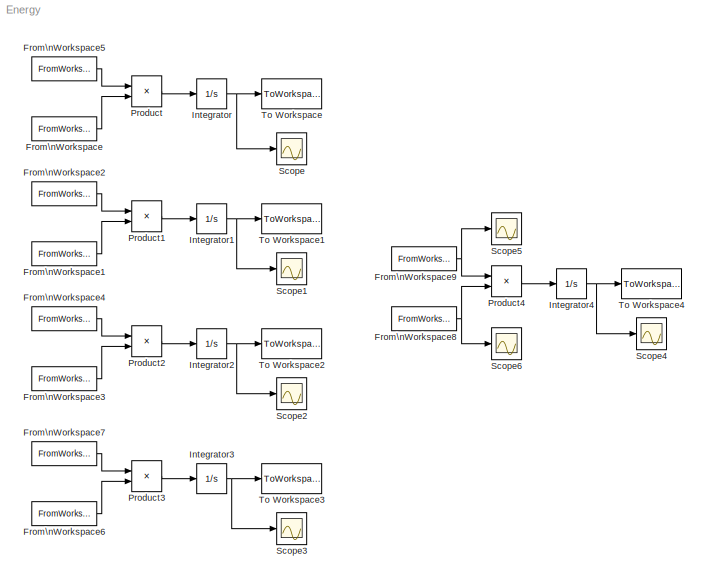
MODEL Energy
KIND model
BLOCK [FromWorkspace] From\nWorkspace
  SID = 7
  SampleTime = 0
  VariableName = Torque1
  ZeroCross = on
BLOCK [FromWorkspace] From\nWorkspace1
  SID = 22
  SampleTime = 0
  VariableName = Torque2
  ZeroCross = on
BLOCK [FromWorkspace] From\nWorkspace2
  SID = 23
  SampleTime = 0
  VariableName = Speed2
  ZeroCross = on
BLOCK [FromWorkspace] From\nWorkspace3
  SID = 27
  SampleTime = 0
  VariableName = Torque3
  ZeroCross = on
BLOCK [FromWorkspace] From\nWorkspace4
  SID = 28
  SampleTime = 0
  VariableName = Speed3
  ZeroCross = on
BLOCK [FromWorkspace] From\nWorkspace5
  SID = 12
  SampleTime = 0
  VariableName = Speed1
  ZeroCross = on
BLOCK [FromWorkspace] From\nWorkspace6
  SID = 32
  SampleTime = 0
  VariableName = Torque4
  ZeroCross = on
BLOCK [FromWorkspace] From\nWorkspace7
  SID = 33
  SampleTime = 0
  VariableName = Speed4
  ZeroCross = on
BLOCK [FromWorkspace] From\nWorkspace8
  SID = 37
  SampleTime = 0
  VariableName = Torque5
  ZeroCross = on
BLOCK [FromWorkspace] From\nWorkspace9
  SID = 38
  SampleTime = 0
  VariableName = Speed5
  ZeroCross = on
BLOCK [Integrator] Integrator
  Ports = [1, 1]
  SID = 20
BLOCK [Integrator] Integrator1
  Ports = [1, 1]
  SID = 24
BLOCK [Integrator] Integrator2
  Ports = [1, 1]
  SID = 29
BLOCK [Integrator] Integrator3
  Ports = [1, 1]
  SID = 34
BLOCK [Integrator] Integrator4
  Ports = [1, 1]
  SID = 41
BLOCK [Product] Product
  InputSameDT = off
  OutDataTypeStr = Inherit: Inherit via internal rule
  Ports = [2, 1]
  SID = 19
  SaturateOnIntegerOverflow = off
BLOCK [Product] Product1
  InputSameDT = off
  OutDataTypeStr = Inherit: Inherit via internal rule
  Ports = [2, 1]
  SID = 25
  SaturateOnIntegerOverflow = off
BLOCK [Product] Product2
  InputSameDT = off
  OutDataTypeStr = Inherit: Inherit via internal rule
  Ports = [2, 1]
  SID = 30
  SaturateOnIntegerOverflow = off
BLOCK [Product] Product3
  InputSameDT = off
  OutDataTypeStr = Inherit: Inherit via internal rule
  Ports = [2, 1]
  SID = 35
  SaturateOnIntegerOverflow = off
BLOCK [Product] Product4
  InputSameDT = off
  OutDataTypeStr = Inherit: Inherit via internal rule
  Ports = [2, 1]
  SID = 43
  SaturateOnIntegerOverflow = off
BLOCK [Scope] Scope
  DataFormat = StructureWithTime
  Floating = off
  NumInputPorts = 1
  Ports = [1]
  SID = 61
  SampleTime = 0
BLOCK [Scope] Scope1
  DataFormat = StructureWithTime
  Floating = off
  NumInputPorts = 1
  Ports = [1]
  SID = 62
  SampleTime = 0
  SaveName = ScopeData1
BLOCK [Scope] Scope2
  DataFormat = StructureWithTime
  Floating = off
  NumInputPorts = 1
  Ports = [1]
  SID = 63
  SampleTime = 0
  SaveName = ScopeData2
BLOCK [Scope] Scope3
  DataFormat = StructureWithTime
  Floating = off
  NumInputPorts = 1
  Ports = [1]
  SID = 64
  SampleTime = 0
  SaveName = ScopeData3
BLOCK [Scope] Scope4
  DataFormat = StructureWithTime
  Floating = off
  NumInputPorts = 1
  Ports = [1]
  SID = 65
  SampleTime = 0
  SaveName = ScopeData4
BLOCK [Scope] Scope5
  DataFormat = StructureWithTime
  Floating = off
  NumInputPorts = 1
  Ports = [1]
  SID = 66
  SampleTime = 0
  SaveName = ScopeData5
BLOCK [Scope] Scope6
  DataFormat = StructureWithTime
  Floating = off
  NumInputPorts = 1
  Ports = [1]
  SID = 67
  SampleTime = 0
  SaveName = ScopeData6
BLOCK [ToWorkspace] To Workspace
  MaxDataPoints = inf
  Ports = [1]
  SID = 21
  SampleTime = -1
  SaveFormat = Structure With Time
  VariableName = Energy1
BLOCK [ToWorkspace] To Workspace1
  MaxDataPoints = inf
  Ports = [1]
  SID = 26
  SampleTime = -1
  SaveFormat = Structure With Time
  VariableName = Energy2
BLOCK [ToWorkspace] To Workspace2
  MaxDataPoints = inf
  Ports = [1]
  SID = 31
  SampleTime = -1
  SaveFormat = Structure With Time
  VariableName = Energy3
BLOCK [ToWorkspace] To Workspace3
  MaxDataPoints = inf
  Ports = [1]
  SID = 36
  SampleTime = -1
  SaveFormat = Structure With Time
  VariableName = Energy4
BLOCK [ToWorkspace] To Workspace4
  MaxDataPoints = inf
  Ports = [1]
  SID = 45
  SampleTime = -1
  SaveFormat = Structure With Time
  VariableName = Energy5
LINE From\nWorkspace1:1 -> Product1:2
LINE From\nWorkspace2:1 -> Product1:1
LINE From\nWorkspace3:1 -> Product2:2
LINE From\nWorkspace4:1 -> Product2:1
LINE From\nWorkspace5:1 -> Product:1
LINE From\nWorkspace6:1 -> Product3:2
LINE From\nWorkspace7:1 -> Product3:1
NET From\nWorkspace8:1 -> Product4:2, Scope6:1
NET From\nWorkspace9:1 -> Product4:1, Scope5:1
LINE From\nWorkspace:1 -> Product:2
NET Integrator1:1 -> Scope1:1, To Workspace1:1
NET Integrator2:1 -> Scope2:1, To Workspace2:1
NET Integrator3:1 -> Scope3:1, To Workspace3:1
NET Integrator4:1 -> Scope4:1, To Workspace4:1
NET Integrator:1 -> Scope:1, To Workspace:1
LINE Product1:1 -> Integrator1:1
LINE Product2:1 -> Integrator2:1
LINE Product3:1 -> Integrator3:1
LINE Product4:1 -> Integrator4:1
LINE Product:1 -> Integrator:1
note: NET lines group one-source signal fan-out (src -> all destinations, sorted); 1:1 wires keep LINE
